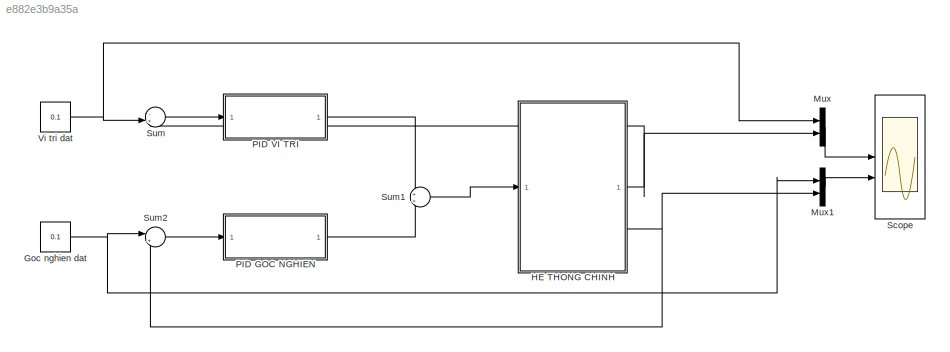
MODEL slx_e882e3b9a35a
KIND model
CONFIG AbsTol = auto
CONFIG EnableMultiTasking = off
CONFIG FixedStep = auto
CONFIG MaxStep = auto
CONFIG MinStep = auto
CONFIG RelTol = 1e-3
CONFIG SampleTimeConstraint = Unconstrained
CONFIG SolverName = ode45
CONFIG StartTime = 0.0
CONFIG StopTime = 20
BLOCK [Constant] Goc nghien dat
  Value = 0.1
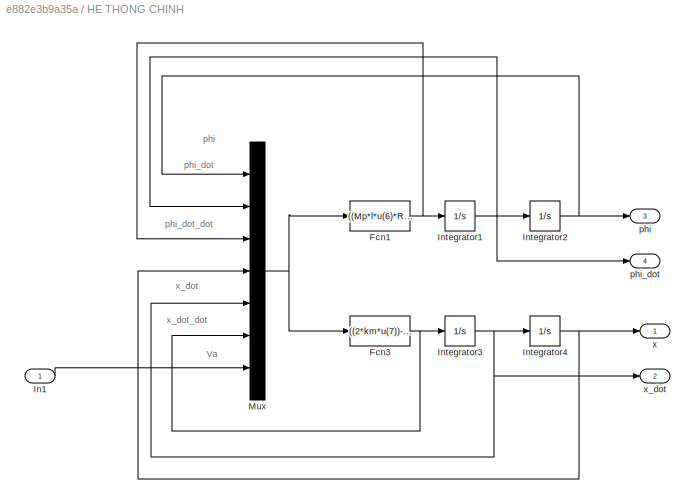
BLOCK [SubSystem] HE THONG CHINH
BLOCK [Fcn] HE THONG CHINH/Fcn1
  Expr = ((Mp*l*u(6)*R*r)+(2*km*ke*u(5))+(2*km*u(7)*r)-(Mp*g*l*u(1)*R*r))/(R*r*(Ip+Mp*l*l))
BLOCK [Fcn] HE THONG CHINH/Fcn3
  Expr = ((2*km*u(7))-(2*km*ke*u(5))-(Mp*l*u(3)*R*r))/(R*r*2*(Mw+(Iw/(r^2))+Mp))
BLOCK [Inport] HE THONG CHINH/In1
BLOCK [Integrator] HE THONG CHINH/Integrator1
BLOCK [Integrator] HE THONG CHINH/Integrator2
BLOCK [Integrator] HE THONG CHINH/Integrator3
BLOCK [Integrator] HE THONG CHINH/Integrator4
BLOCK [Mux] HE THONG CHINH/Mux
  DisplayOption = bar
  Inputs = 7
BLOCK [Outport] HE THONG CHINH/phi
  Port = 3
  VectorParamsAs1DForOutWhenUnconnected = off
BLOCK [Outport] HE THONG CHINH/phi_dot
  Port = 4
  VectorParamsAs1DForOutWhenUnconnected = off
BLOCK [Outport] HE THONG CHINH/x
  VectorParamsAs1DForOutWhenUnconnected = off
BLOCK [Outport] HE THONG CHINH/x_dot
  Port = 2
  VectorParamsAs1DForOutWhenUnconnected = off
BLOCK [Mux] Mux
  DisplayOption = bar
  Inputs = 2
BLOCK [Mux] Mux1
  DisplayOption = bar
  Inputs = 2
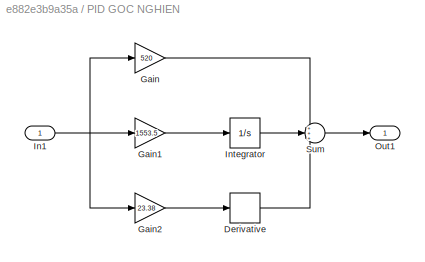
BLOCK [SubSystem] PID GOC NGHIEN
BLOCK [Derivative] PID GOC NGHIEN/Derivative
BLOCK [Gain] PID GOC NGHIEN/Gain
  Gain = 520
BLOCK [Gain] PID GOC NGHIEN/Gain1
  Gain = 1553.5
BLOCK [Gain] PID GOC NGHIEN/Gain2
  Gain = 23.38
BLOCK [Inport] PID GOC NGHIEN/In1
BLOCK [Integrator] PID GOC NGHIEN/Integrator
BLOCK [Outport] PID GOC NGHIEN/Out1
  VectorParamsAs1DForOutWhenUnconnected = off
BLOCK [Sum] PID GOC NGHIEN/Sum
  Inputs = +++
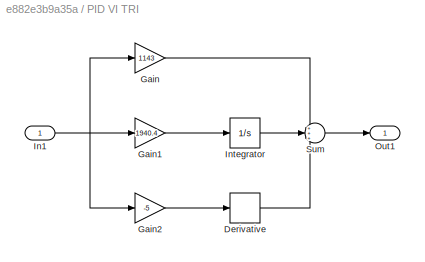
BLOCK [SubSystem] PID VI TRI
BLOCK [Derivative] PID VI TRI/Derivative
BLOCK [Gain] PID VI TRI/Gain
  Gain = 1143
BLOCK [Gain] PID VI TRI/Gain1
  Gain = 1940.4
BLOCK [Gain] PID VI TRI/Gain2
  Gain = -5
BLOCK [Inport] PID VI TRI/In1
BLOCK [Integrator] PID VI TRI/Integrator
BLOCK [Outport] PID VI TRI/Out1
  VectorParamsAs1DForOutWhenUnconnected = off
BLOCK [Sum] PID VI TRI/Sum
  Inputs = +++
BLOCK [Scope] Scope
  Floating = off
  NumInputPorts = 2
  ScopeSpecificationString = Simulink.scopes.TimeScopeBlockCfg('CurrentConfiguration', extmgr.ConfigurationSet(extmgr.Configuration('Core','General UI',true),extmgr.Configuration('Core','Source UI',true),extmgr.Configuration('Sources','WiredSimulink',true),extmgr.Configuration('Visuals','Time Domain',true,'SerializedDisplays',{struct('MinYLimReal','-0.02251','MaxYLimReal','0.20257','YLabelReal','','MinYLimMag','0.00000','MaxY...<+2296ch>
BLOCK [Sum] Sum
  Inputs = -+|
BLOCK [Sum] Sum1
BLOCK [Sum] Sum2
  Inputs = |+-
BLOCK [Constant] Vi tri dat 
  Value = 0.1
ANNOTATION HE THONG CHINH: Va
ANNOTATION HE THONG CHINH: phi
ANNOTATION HE THONG CHINH: phi_dot
ANNOTATION HE THONG CHINH: phi_dot_dot
ANNOTATION HE THONG CHINH: x_dot
ANNOTATION HE THONG CHINH: x_dot_dot
NET Goc nghien dat:1 -> Mux1:1, Sum2:1
NET HE THONG CHINH/Fcn1:1 -> HE THONG CHINH/Integrator1:1, HE THONG CHINH/Mux:3
NET HE THONG CHINH/Fcn3:1 -> HE THONG CHINH/Integrator3:1, HE THONG CHINH/Mux:6
LINE HE THONG CHINH/In1:1 -> HE THONG CHINH/Mux:7
NET HE THONG CHINH/Integrator1:1 -> HE THONG CHINH/Integrator2:1, HE THONG CHINH/Mux:2, HE THONG CHINH/phi_dot:1
NET HE THONG CHINH/Integrator2:1 -> HE THONG CHINH/Mux:1, HE THONG CHINH/phi:1
NET HE THONG CHINH/Integrator3:1 -> HE THONG CHINH/Integrator4:1, HE THONG CHINH/Mux:5, HE THONG CHINH/x_dot:1
NET HE THONG CHINH/Integrator4:1 -> HE THONG CHINH/Mux:4, HE THONG CHINH/x:1
NET HE THONG CHINH/Mux:1 -> HE THONG CHINH/Fcn1:1, HE THONG CHINH/Fcn3:1
NET HE THONG CHINH:1 -> Mux:2, Sum:1
NET HE THONG CHINH:3 -> Mux1:2, Sum2:2
LINE Mux1:1 -> Scope:2
LINE Mux:1 -> Scope:1
LINE PID GOC NGHIEN/Derivative:1 -> PID GOC NGHIEN/Sum:3
LINE PID GOC NGHIEN/Gain1:1 -> PID GOC NGHIEN/Integrator:1
LINE PID GOC NGHIEN/Gain2:1 -> PID GOC NGHIEN/Derivative:1
LINE PID GOC NGHIEN/Gain:1 -> PID GOC NGHIEN/Sum:1
NET PID GOC NGHIEN/In1:1 -> PID GOC NGHIEN/Gain1:1, PID GOC NGHIEN/Gain2:1, PID GOC NGHIEN/Gain:1
LINE PID GOC NGHIEN/Integrator:1 -> PID GOC NGHIEN/Sum:2
LINE PID GOC NGHIEN/Sum:1 -> PID GOC NGHIEN/Out1:1
LINE PID GOC NGHIEN:1 -> Sum1:2
LINE PID VI TRI/Derivative:1 -> PID VI TRI/Sum:3
LINE PID VI TRI/Gain1:1 -> PID VI TRI/Integrator:1
LINE PID VI TRI/Gain2:1 -> PID VI TRI/Derivative:1
LINE PID VI TRI/Gain:1 -> PID VI TRI/Sum:1
NET PID VI TRI/In1:1 -> PID VI TRI/Gain1:1, PID VI TRI/Gain2:1, PID VI TRI/Gain:1
LINE PID VI TRI/Integrator:1 -> PID VI TRI/Sum:2
LINE PID VI TRI/Sum:1 -> PID VI TRI/Out1:1
LINE PID VI TRI:1 -> Sum1:1
LINE Sum1:1 -> HE THONG CHINH:1
LINE Sum2:1 -> PID GOC NGHIEN:1
LINE Sum:1 -> PID VI TRI:1
NET Vi tri dat :1 -> Mux:1, Sum:2
note: NET lines group one-source signal fan-out (src -> all destinations, sorted); 1:1 wires keep LINE
